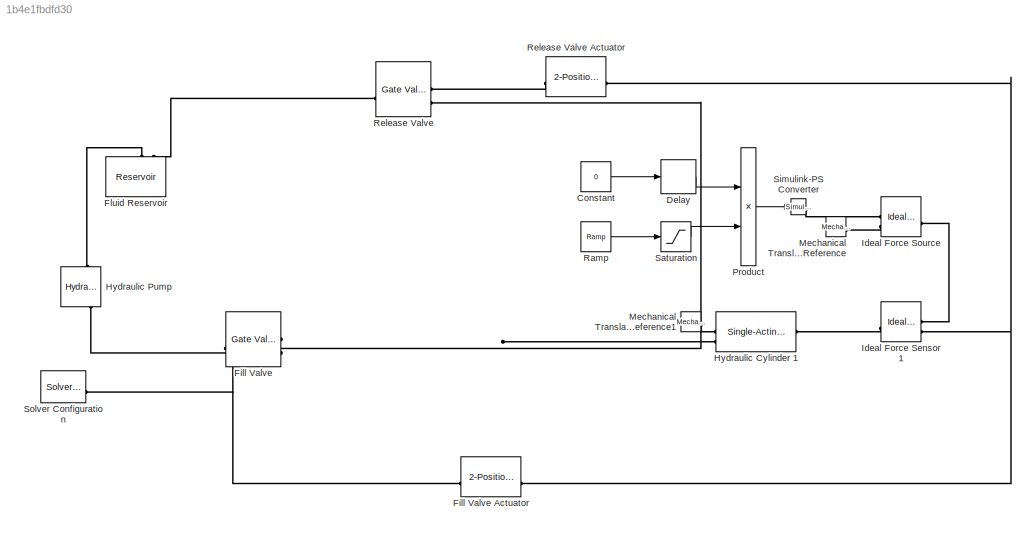
MODEL slx_1b4e1fbdfd30
KIND model
CONFIG AbsTol = auto
CONFIG EnableMultiTasking = off
CONFIG FixedStep = auto
CONFIG MaxStep = auto
CONFIG MinStep = auto
CONFIG RelTol = 1e-3
CONFIG SampleTimeConstraint = Unconstrained
CONFIG SolverName = VariableStepAuto
CONFIG StartTime = 0.0
CONFIG StopTime = 10.0
BLOCK [Constant] Constant
  Value = 0
BLOCK [Delay] Delay
  DelayLength = 5
  InputPortMap = u0
BLOCK [Reference] Fill Valve  REF=sh_lib/Valves/Flow Control Valves/Gate Valve
  SourceBlock = sh_lib/Valves/Flow Control Valves/Gate Valve
  SourceType = Gate Valve
BLOCK [Reference] Fill Valve Actuator  REF=sh_lib/Valves/Valve Actuators/2-Position Valve
Actuator
  SourceBlock = sh_lib/Valves/Valve Actuators/2-Position Valve\nActuator
  SourceType = 2-Position Valve\nActuator
BLOCK [Reference] Fluid Reservoir  REF=sh_lib/Hydraulic Utilities/Reservoir
  NameLocation = right
  SourceBlock = sh_lib/Hydraulic Utilities/Reservoir
  SourceType = Reservoir
BLOCK [Reference] Hydraulic Cylinder 1  REF=sh_lib/Hydraulic Cylinders/Single-Acting
Hydraulic Cylinder
(Simple)
  SourceBlock = sh_lib/Hydraulic Cylinders/Single-Acting\nHydraulic Cylinder\n(Simple)
  SourceType = Single-Acting\nHydraulic Cylinder\n(Simple)
BLOCK [Reference] Hydraulic Pump  REF=fl_lib/Hydraulic/Hydraulic Sources/Hydraulic Pressure
Source
  NameLocation = right
  SourceBlock = fl_lib/Hydraulic/Hydraulic Sources/Hydraulic Pressure\nSource
  SourceType = Hydraulic Pressure\nSource
BLOCK [Reference] Ideal Force Sensor 1   REF=fl_lib/Mechanical/Mechanical Sensors/Ideal Force Sensor
  SourceBlock = fl_lib/Mechanical/Mechanical Sensors/Ideal Force Sensor
  SourceType = Ideal Force Sensor
BLOCK [Reference] Ideal Force Source  REF=fl_lib/Mechanical/Mechanical Sources/Ideal Force Source
  SourceBlock = fl_lib/Mechanical/Mechanical Sources/Ideal Force Source
  SourceType = Ideal Force Source
BLOCK [Reference] Mechanical Translational Reference  REF=fl_lib/Mechanical/Translational
Elements/Mechanical
Translational
Reference
  SourceBlock = fl_lib/Mechanical/Translational\nElements/Mechanical\nTranslational\nReference
  SourceType = Mechanical\nTranslational\nReference
BLOCK [Reference] Mechanical Translational Reference1  REF=fl_lib/Mechanical/Translational
Elements/Mechanical
Translational
Reference
  SourceBlock = fl_lib/Mechanical/Translational\nElements/Mechanical\nTranslational\nReference
  SourceType = Mechanical\nTranslational\nReference
BLOCK [Product] Product
BLOCK [Reference] Ramp  REF=simulink/Sources/Ramp
  SourceBlock = simulink/Sources/Ramp
  SourceType = Ramp
BLOCK [Reference] Release Valve  REF=sh_lib/Valves/Flow Control Valves/Gate Valve
  SourceBlock = sh_lib/Valves/Flow Control Valves/Gate Valve
  SourceType = Gate Valve
BLOCK [Reference] Release Valve Actuator  REF=sh_lib/Valves/Valve Actuators/2-Position Valve
Actuator
  SourceBlock = sh_lib/Valves/Valve Actuators/2-Position Valve\nActuator
  SourceType = 2-Position Valve\nActuator
BLOCK [Saturate] Saturation
  LowerLimit = 0
  UpperLimit = 2
BLOCK [Reference] Simulink-PS Converter  REF=nesl_utility/Simulink-PS
Converter
  SourceBlock = nesl_utility/Simulink-PS\nConverter
  SourceType = Simulink-PS\nConverter
BLOCK [Reference] Solver Configuration  REF=nesl_utility/Solver
Configuration
  SourceBlock = nesl_utility/Solver\nConfiguration
  SourceType = Solver\nConfiguration
LINE Constant:1 -> Delay:1
LINE Delay:1 -> Product:1
LINE Product:1 -> Simulink-PS Converter:1
LINE Ramp:1 -> Saturation:1
LINE Saturation:1 -> Product:2
PNET net1: Fill Valve Actuator:LConn1 -- Ideal Force Sensor 1 :RConn2 -- Release Valve Actuator:LConn1
PNET net2: Fill Valve Actuator:RConn1 -- Fill Valve:LConn1 -- Solver Configuration:RConn1
PLINE Fill Valve:LConn2 -- Hydraulic Pump:RConn2
PNET net3: Fill Valve:RConn1 -- Hydraulic Cylinder 1:LConn2 -- Release Valve:LConn2
PLINE Fluid Reservoir:LConn2 -- Hydraulic Pump:LConn1
PLINE Fluid Reservoir:LConn3 -- Release Valve:RConn1
PLINE Hydraulic Cylinder 1:LConn1 -- Mechanical Translational Reference1:LConn1
PLINE Hydraulic Cylinder 1:RConn1 -- Ideal Force Sensor 1 :LConn1
PLINE Ideal Force Sensor 1 :RConn1 -- Ideal Force Source:LConn1
PLINE Ideal Force Source:RConn1 -- Simulink-PS Converter:RConn1
PLINE Ideal Force Source:RConn2 -- Mechanical Translational Reference:LConn1
PLINE Release Valve Actuator:RConn1 -- Release Valve:LConn1
note: PNET lines group multi-terminal physical nets as a canonical sorted terminal list (undirected conserving connections); 2-terminal nets keep the pairwise PLINE form
